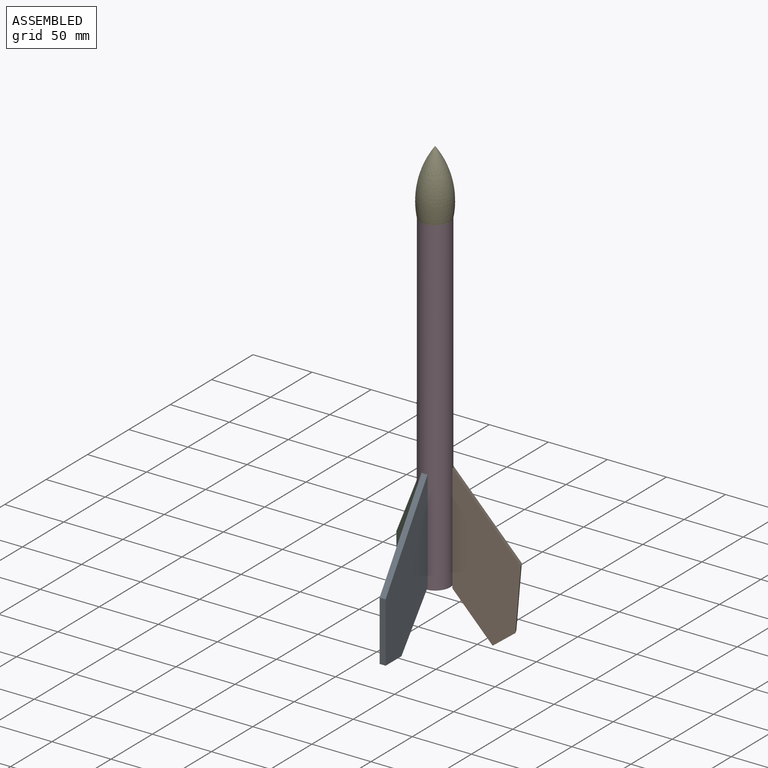
[diagram: assembled view]
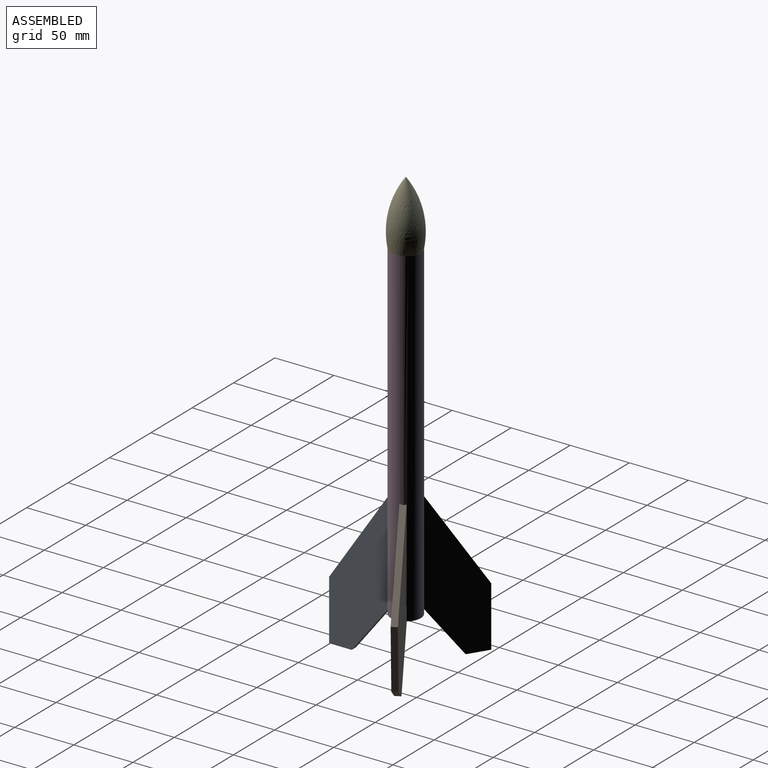
[diagram: assembled view, second angle]
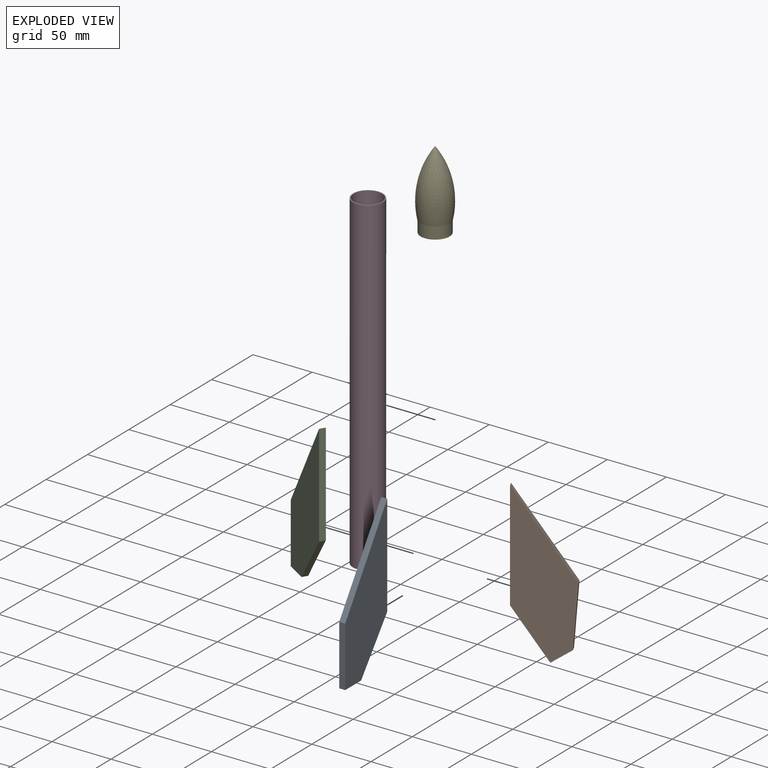
[diagram: exploded view]
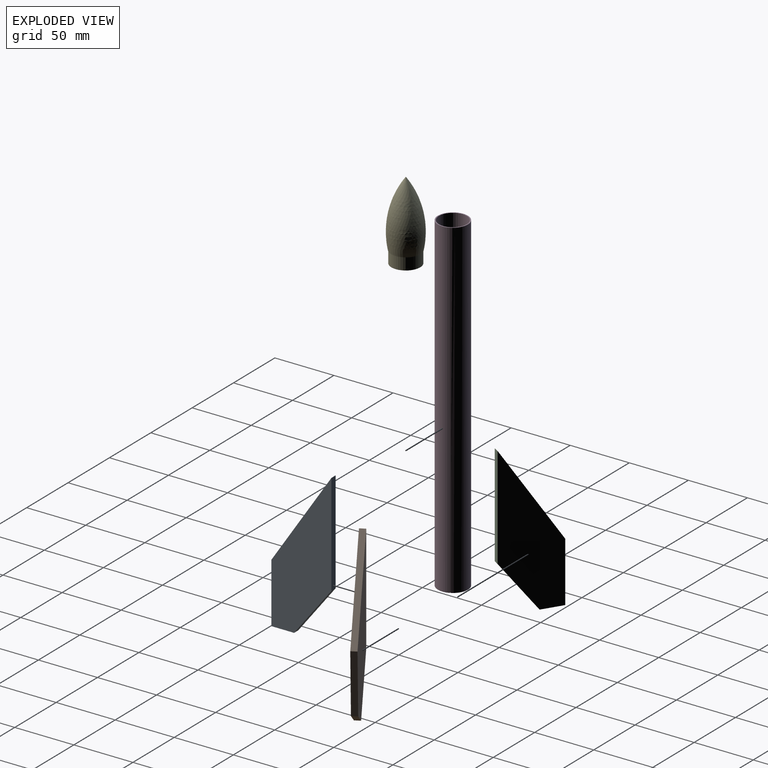
[diagram: exploded view, second angle]
ASSEMBLY  parts=5 mates=4
PART A: 7 faces, bbox 50.8x5.1x127 mm
  f0: plane 19.16x5.08mm, normal (0,0,-1), area 97.3mm2, adj f1,f4,f5,f6
  f1: plane 50.8x5.08mm, normal (1,0,0), area 258.1mm2, adj f0,f2,f5,f6
  f2: plane 76.2x50.8mm, normal (0.83,0,0.55), area 465.2mm2, adj f1,f3,f5,f6
  f3: plane 86.36x5.08mm, normal (-1,0,0), area 438.7mm2, adj f2,f4,f5,f6
  f4: plane 40.64x31.65mm, normal (-0.79,0,-0.61), area 261.7mm2, adj f0,f3,f5,f6
  f5: plane 127x50.8mm, normal (0,-1,0), area 3873.1mm2, adj f0,f1,f2,f3,f4
  f6: plane 127x50.8mm, normal (0,1,0), area 3873.1mm2, adj f0,f1,f2,f3,f4
PART B: same geometry as A
PART C: same geometry as A
PART D: 16 faces, bbox 25.4x25.4x279.4 mm
  f0: cylinder r=12.7mm len=279.4mm, axis (0,0,-1), area 22094.9mm2, adj f1,f3,f4,f5,f6,f8,f9,f10
  f1: plane 25.4x25.4mm, normal (0,0,-1), area 64.2mm2, adj f0,f2,f5,f6,f7,f9,f10,f11
  f2: cylinder r=11.86mm len=279.4mm, axis (0,0,-1), area 20821mm2, adj f1,f3
  f3: plane 25.4x25.4mm, normal (0,0,1), area 64.8mm2, adj f0,f2
  f4: plane 0.61x0.23mm, normal (0,0,-1), area 0.1mm2, adj f0,f5,f6,f7
  f5: plane 88.9x0.23mm, normal (-1,0,0), area 20.7mm2, adj f0,f1,f4,f7
  f6: plane 88.9x0.21mm, normal (1,0,0), area 18.9mm2, adj f0,f1,f4,f7
  f7: plane 88.9x0.61mm, normal (0,-1,0), area 54.2mm2, adj f1,f4,f5,f6
  f8: plane 0.89x0.65mm, normal (0,0,-1), area 0.3mm2, adj f0,f9,f10,f11
  f9: plane 88.9x0.26mm, normal (-0.47,0.88,0), area 26.2mm2, adj f0,f1,f8,f11
  f10: plane 88.9x0.25mm, normal (0.53,-0.85,0), area 26.6mm2, adj f0,f1,f8,f11
  f11: plane 88.9x0.74mm, normal (0.88,0.47,0), area 73.9mm2, adj f1,f8,f9,f10
  f12: plane 0.81x0.66mm, normal (0,0,-1), area 0.2mm2, adj f0,f13,f14,f15
  f13: plane 88.9x0.24mm, normal (-0.53,-0.85,0), area 24.9mm2, adj f0,f1,f12,f15
  f14: plane 88.9x0.24mm, normal (0.49,0.87,0), area 25mm2, adj f0,f1,f12,f15
  f15: plane 88.9x0.66mm, normal (-0.85,0.53,0), area 69mm2, adj f1,f12,f13,f14
PART E: 4 faces, bbox 27.7x27.7x66 mm
  f0: plane 24.38x24.38mm, normal (0,0,-1), area 467mm2, adj f1
  f1: cylinder r=12.19mm len=24.38mm, axis (0,0,-1), area 778.3mm2, adj f0,f2
  f2: plane 24.89x24.89mm, normal (0,0,-1), area 19.7mm2, adj f1,f3
  f3: revolved ~55.88x27.7mm, area 3770.9mm2, adj f2
PLACE A rot(axis=(0,0,-1),90deg) t=(-67.31,14.7,-77.17)mm
PLACE B rot(axis=(0.29,0.07,-0.95),153.5deg) t=(4.97,63.14,-54.74)mm
PLACE C rot(axis=(0,0,1),147.8deg) t=(-81.61,31.57,-76.48)mm
PLACE D t=(-69.71,27.17,-38.58)mm fixed
PLACE E t=(-69.71,27.17,229.64)mm
MATE planar D.f7 <-> A.f3  axis (0,-1,0) through (-70.14,14.7,5.87)mm
MATE slider E.f1 <-> D.f2  axis (0,0,-1) through (-69.71,27.17,229.64)mm
MATE planar D.f11 <-> B.f2  axis (0.88,0.47,0) through (-58.7,32.88,5.87)mm
MATE planar D.f15 <-> C.f3  axis (-0.85,0.53,0) through (-80.19,33.81,5.87)mm
